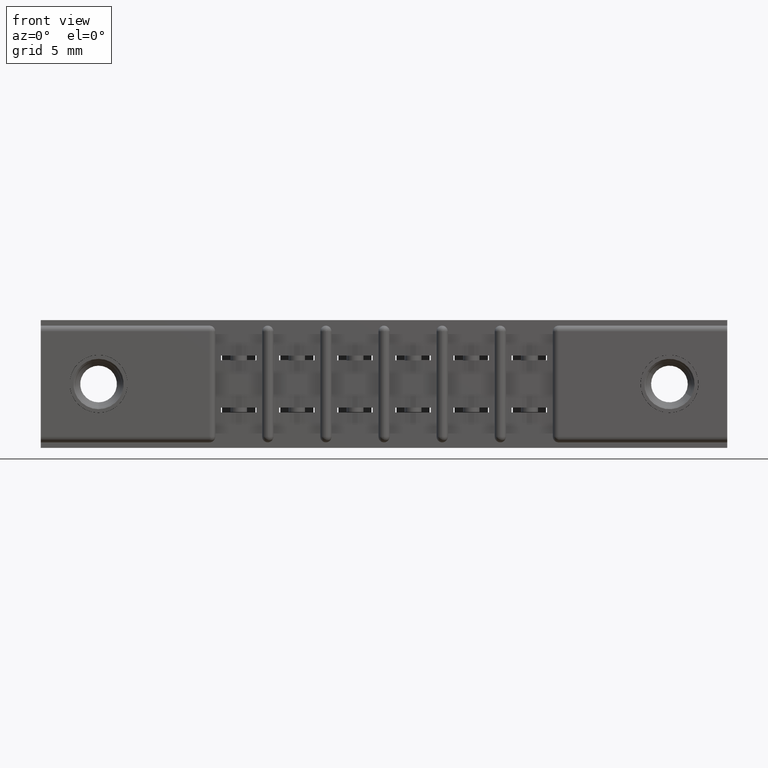
[diagram: clean part render]
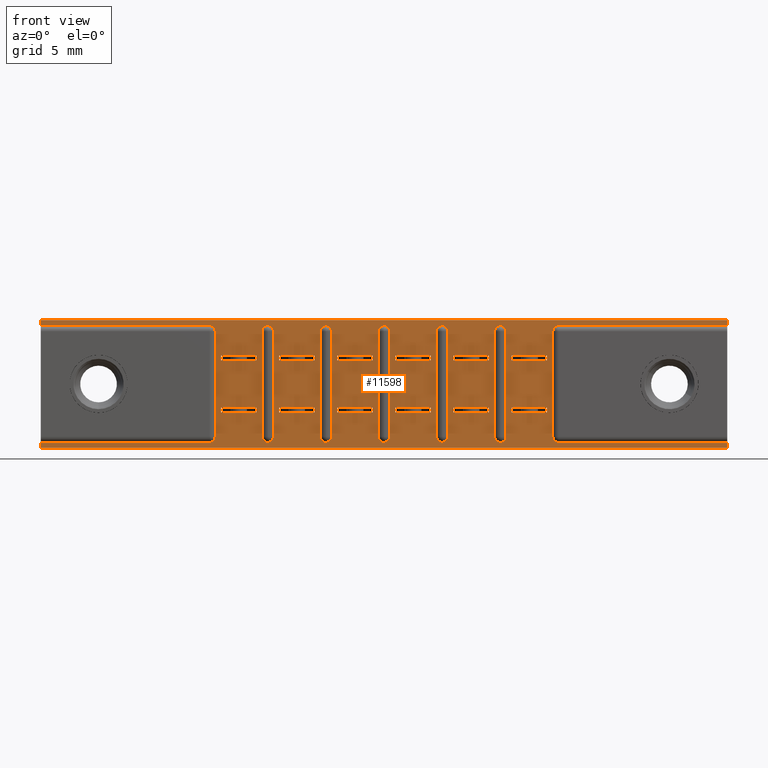
[diagram: same view with one face highlighted and labeled with its STEP entity id]
A machine part, front view. The second image highlights one B-rep face of the part: STEP entity #11598.
In plain terms, the highlighted planar face has unit normal (0, 1, 0).
Its self-contained STEP definition (entity closure, byte-faithful):
#2 = ORIENTED_EDGE ( 'NONE', *, *, #10173, .T. ) ;
#6 = FACE_BOUND ( 'NONE', #5863, .T. ) ;
#13 = CARTESIAN_POINT ( 'NONE',  ( 1.263500000000001000, 0.03100000000000000000, -0.2480000000000003300 ) ) ;
#16 = CIRCLE ( 'NONE', #5145, 0.01500000000000001200 ) ;
#27 = LINE ( 'NONE', #889, #7720 ) ;
#36 = DIRECTION ( 'NONE',  ( -1.000000000000000000, -0.0000000000000000000, -0.0000000000000000000 ) ) ;
#39 = CIRCLE ( 'NONE', #7093, 0.01499999999999999900 ) ;
#41 = EDGE_LOOP ( 'NONE', ( #9399, #6127, #8507, #9844 ) ) ;
#85 = EDGE_CURVE ( 'NONE', #7610, #1729, #534, .T. ) ;
#102 = DIRECTION ( 'NONE',  ( -1.000000000000000000, -0.0000000000000000000, -0.0000000000000000000 ) ) ;
#105 = EDGE_CURVE ( 'NONE', #10066, #6390, #2300, .T. ) ;
#118 = DIRECTION ( 'NONE',  ( -1.000000000000000000, 0.0000000000000000000, 3.594536833768733600E-016 ) ) ;
#149 = DIRECTION ( 'NONE',  ( -1.000000000000000000, -0.0000000000000000000, 3.594536833768733600E-016 ) ) ;
#158 = ORIENTED_EDGE ( 'NONE', *, *, #4733, .F. ) ;
#170 = VERTEX_POINT ( 'NONE', #8257 ) ;
#178 = ORIENTED_EDGE ( 'NONE', *, *, #6514, .T. ) ;
#208 = VECTOR ( 'NONE', #6618, 39.37007874015748100 ) ;
#241 = CARTESIAN_POINT ( 'NONE',  ( 1.077000000000000200, 0.03100000000000002400, -0.02999999999999995400 ) ) ;
#248 = LINE ( 'NONE', #11087, #3319 ) ;
#269 = DIRECTION ( 'NONE',  ( 0.0000000000000000000, 1.000000000000000000, 0.0000000000000000000 ) ) ;
#270 = CARTESIAN_POINT ( 'NONE',  ( 0.7955000000000017600, 0.03100000000000002400, -0.2350000000000003800 ) ) ;
#272 = CARTESIAN_POINT ( 'NONE',  ( 1.842000000000000700, 0.03100000000000000000, -0.01499999999999997700 ) ) ;
#274 = ORIENTED_EDGE ( 'NONE', *, *, #2934, .T. ) ;
#286 = DIRECTION ( 'NONE',  ( 0.0000000000000000000, -0.0000000000000000000, 1.000000000000000000 ) ) ;
#290 = EDGE_CURVE ( 'NONE', #3280, #10410, #1133, .T. ) ;
#294 = CARTESIAN_POINT ( 'NONE',  ( 0.4530000000000003500, 0.03100000000000000000, -0.01499999999999997700 ) ) ;
#304 = VERTEX_POINT ( 'NONE', #5520 ) ;
#329 = DIRECTION ( 'NONE',  ( 0.0000000000000000000, 0.0000000000000000000, 1.000000000000000000 ) ) ;
#332 = DIRECTION ( 'NONE',  ( 0.0000000000000000000, 0.0000000000000000000, 1.000000000000000000 ) ) ;
#334 = ORIENTED_EDGE ( 'NONE', *, *, #342, .T. ) ;
#342 = EDGE_CURVE ( 'NONE', #4414, #6740, #10919, .T. ) ;
#357 = LINE ( 'NONE', #1673, #7155 ) ;
#358 = CARTESIAN_POINT ( 'NONE',  ( 0.9210000000000003700, 0.03100000000000000000, -0.3130000000000000600 ) ) ;
#361 = ORIENTED_EDGE ( 'NONE', *, *, #9298, .T. ) ;
#367 = AXIS2_PLACEMENT_3D ( 'NONE', #6791, #11659, #5012 ) ;
#371 = ORIENTED_EDGE ( 'NONE', *, *, #7473, .T. ) ;
#385 = CIRCLE ( 'NONE', #5365, 0.01500000000000001200 ) ;
#396 = DIRECTION ( 'NONE',  ( 0.0000000000000000000, -0.0000000000000000000, 1.000000000000000000 ) ) ;
#410 = CARTESIAN_POINT ( 'NONE',  ( 0.9210000000000003700, 0.03100000000000002400, -0.02999999999999995400 ) ) ;
#423 = DIRECTION ( 'NONE',  ( 0.0000000000000000000, 1.000000000000000000, 0.0000000000000000000 ) ) ;
#436 = CARTESIAN_POINT ( 'NONE',  ( 1.202500000000001200, 0.03100000000000002400, -0.1080000000000003200 ) ) ;
#441 = LINE ( 'NONE', #9673, #9962 ) ;
#442 = ORIENTED_EDGE ( 'NONE', *, *, #11798, .F. ) ;
#451 = VERTEX_POINT ( 'NONE', #7357 ) ;
#453 = ORIENTED_EDGE ( 'NONE', *, *, #11243, .T. ) ;
#460 = EDGE_CURVE ( 'NONE', #7104, #4391, #385, .T. ) ;
#507 = EDGE_LOOP ( 'NONE', ( #9224, #2023, #11733, #6728 ) ) ;
#534 = LINE ( 'NONE', #4662, #1713 ) ;
#552 = ORIENTED_EDGE ( 'NONE', *, *, #7947, .T. ) ;
#558 = VERTEX_POINT ( 'NONE', #10939 ) ;
#570 = EDGE_CURVE ( 'NONE', #2806, #8592, #5007, .T. ) ;
#583 = FACE_BOUND ( 'NONE', #2887, .T. ) ;
#593 = VERTEX_POINT ( 'NONE', #8175 ) ;
#613 = EDGE_CURVE ( 'NONE', #9022, #9271, #2715, .T. ) ;
#626 = EDGE_LOOP ( 'NONE', ( #2985, #3431, #3416, #11537 ) ) ;
#636 = ORIENTED_EDGE ( 'NONE', *, *, #10705, .F. ) ;
#684 = VERTEX_POINT ( 'NONE', #4571 ) ;
#705 = CARTESIAN_POINT ( 'NONE',  ( 1.107500000000001000, 0.03100000000000000000, -0.2480000000000003300 ) ) ;
#737 = EDGE_CURVE ( 'NONE', #877, #4674, #6164, .T. ) ;
#759 = CARTESIAN_POINT ( 'NONE',  ( 1.062000000000000300, 0.03100000000000002400, -0.3130000000000000600 ) ) ;
#783 = CARTESIAN_POINT ( 'NONE',  ( 1.107500000000001300, 0.03100000000000002400, -0.1080000000000003000 ) ) ;
#790 = DIRECTION ( 'NONE',  ( 1.507642380609414700E-016, 0.0000000000000000000, -1.000000000000000000 ) ) ;
#802 = EDGE_CURVE ( 'NONE', #3644, #451, #7772, .T. ) ;
#804 = CARTESIAN_POINT ( 'NONE',  ( 0.6395000000000022900, 0.03100000000000000000, -0.2350000000000003800 ) ) ;
#810 = CIRCLE ( 'NONE', #2982, 0.01500000000000001200 ) ;
#816 = EDGE_CURVE ( 'NONE', #2354, #6278, #5429, .T. ) ;
#820 = VERTEX_POINT ( 'NONE', #11343 ) ;
#823 = CARTESIAN_POINT ( 'NONE',  ( 0.9515000000000004600, 0.03100000000000000000, -0.09500000000000032000 ) ) ;
#840 = LINE ( 'NONE', #1090, #976 ) ;
#848 = ORIENTED_EDGE ( 'NONE', *, *, #10780, .F. ) ;
#877 = VERTEX_POINT ( 'NONE', #7113 ) ;
#887 = ORIENTED_EDGE ( 'NONE', *, *, #10215, .T. ) ;
#889 = CARTESIAN_POINT ( 'NONE',  ( 1.842000000000000700, 0.03100000000000000000, -0.01499999999999997700 ) ) ;
#896 = FACE_BOUND ( 'NONE', #6703, .T. ) ;
#915 = ORIENTED_EDGE ( 'NONE', *, *, #11775, .F. ) ;
#923 = LINE ( 'NONE', #10449, #7580 ) ;
#945 = LINE ( 'NONE', #8791, #1547 ) ;
#973 = CARTESIAN_POINT ( 'NONE',  ( 1.358500000000001400, 0.03100000000000002400, -0.05850000000000034300 ) ) ;
#976 = VECTOR ( 'NONE', #4703, 39.37007874015748100 ) ;
#990 = ORIENTED_EDGE ( 'NONE', *, *, #6562, .T. ) ;
#1000 = CARTESIAN_POINT ( 'NONE',  ( 0.6395000000000004000, 0.03100000000000000000, -0.09500000000000032000 ) ) ;
#1032 = VERTEX_POINT ( 'NONE', #10490 ) ;
#1042 = ORIENTED_EDGE ( 'NONE', *, *, #2542, .F. ) ;
#1044 = CARTESIAN_POINT ( 'NONE',  ( 0.7800000000000004700, 0.03100000000000002400, -0.02999999999999995400 ) ) ;
#1051 = EDGE_CURVE ( 'NONE', #10410, #2504, #3287, .T. ) ;
#1067 = VECTOR ( 'NONE', #2872, 39.37007874015748100 ) ;
#1070 = VECTOR ( 'NONE', #10028, 39.37007874015748100 ) ;
#1090 = CARTESIAN_POINT ( 'NONE',  ( 0.4835000000000013200, 0.03100000000000002400, -0.05850000000000034300 ) ) ;
#1095 = AXIS2_PLACEMENT_3D ( 'NONE', #5216, #3424, #6033 ) ;
#1125 = CARTESIAN_POINT ( 'NONE',  ( 0.4680000000000003000, 0.03100000000000002400, -0.02999999999999995400 ) ) ;
#1133 = LINE ( 'NONE', #8813, #3442 ) ;
#1134 = VERTEX_POINT ( 'NONE', #2282 ) ;
#1147 = EDGE_CURVE ( 'NONE', #5859, #6278, #4285, .T. ) ;
#1191 = FACE_BOUND ( 'NONE', #507, .T. ) ;
#1219 = ORIENTED_EDGE ( 'NONE', *, *, #11481, .F. ) ;
#1231 = DIRECTION ( 'NONE',  ( 0.0000000000000000000, 0.0000000000000000000, 1.000000000000000000 ) ) ;
#1233 = LINE ( 'NONE', #10503, #1660 ) ;
#1294 = VECTOR ( 'NONE', #5048, 39.37007874015748100 ) ;
#1301 = CARTESIAN_POINT ( 'NONE',  ( 0.0000000000000000000, 0.03100000000000000000, -0.3430000000000000300 ) ) ;
#1306 = ORIENTED_EDGE ( 'NONE', *, *, #10978, .T. ) ;
#1333 = EDGE_CURVE ( 'NONE', #10532, #5859, #11898, .T. ) ;
#1334 = ORIENTED_EDGE ( 'NONE', *, *, #9814, .F. ) ;
#1348 = ORIENTED_EDGE ( 'NONE', *, *, #8732, .T. ) ;
#1375 = AXIS2_PLACEMENT_3D ( 'NONE', #410, #2259, #6878 ) ;
#1397 = VECTOR ( 'NONE', #9051, 39.37007874015748100 ) ;
#1443 = LINE ( 'NONE', #5325, #6916 ) ;
#1450 = DIRECTION ( 'NONE',  ( -1.000000000000000000, 0.0000000000000000000, 3.594536833768733600E-016 ) ) ;
#1493 = CARTESIAN_POINT ( 'NONE',  ( 1.202500000000001200, 0.03100000000000002400, -0.05850000000000034300 ) ) ;
#1495 = EDGE_CURVE ( 'NONE', #7711, #7610, #810, .T. ) ;
#1516 = DIRECTION ( 'NONE',  ( 0.0000000000000000000, 0.0000000000000000000, 1.000000000000000000 ) ) ;
#1547 = VECTOR ( 'NONE', #9767, 39.37007874015748100 ) ;
#1576 = EDGE_LOOP ( 'NONE', ( #11314, #1306, #371, #10577, #4734, #636, #8103, #10379, #915, #552, #10806, #178, #1874, #274, #7953, #3216 ) ) ;
#1585 = LINE ( 'NONE', #4130, #1294 ) ;
#1609 = LINE ( 'NONE', #2990, #9951 ) ;
#1612 = EDGE_CURVE ( 'NONE', #8661, #9271, #3123, .T. ) ;
#1619 = AXIS2_PLACEMENT_3D ( 'NONE', #9461, #3951, #4905 ) ;
#1642 = DIRECTION ( 'NONE',  ( -1.000000000000000000, -0.0000000000000000000, -0.0000000000000000000 ) ) ;
#1644 = EDGE_CURVE ( 'NONE', #9689, #4275, #357, .T. ) ;
#1645 = EDGE_CURVE ( 'NONE', #3517, #2297, #10322, .T. ) ;
#1651 = CARTESIAN_POINT ( 'NONE',  ( 1.202500000000001200, 0.03100000000000002400, -0.2350000000000003800 ) ) ;
#1660 = VECTOR ( 'NONE', #7118, 39.37007874015748100 ) ;
#1673 = CARTESIAN_POINT ( 'NONE',  ( 1.842000000000000700, 0.03100000000000000000, -0.3430000000000000300 ) ) ;
#1679 = ORIENTED_EDGE ( 'NONE', *, *, #9833, .T. ) ;
#1699 = VECTOR ( 'NONE', #7122, 39.37007874015748100 ) ;
#1708 = VECTOR ( 'NONE', #6471, 39.37007874015748100 ) ;
#1713 = VECTOR ( 'NONE', #5544, 39.37007874015748100 ) ;
#1719 = VERTEX_POINT ( 'NONE', #6940 ) ;
#1729 = VERTEX_POINT ( 'NONE', #7929 ) ;
#1749 = ORIENTED_EDGE ( 'NONE', *, *, #8386, .F. ) ;
#1770 = VECTOR ( 'NONE', #1642, 39.37007874015748100 ) ;
#1789 = LINE ( 'NONE', #4775, #2086 ) ;
#1873 = CARTESIAN_POINT ( 'NONE',  ( 0.7345000000000013700, 0.03100000000000002400, -0.1080000000000003200 ) ) ;
#1874 = ORIENTED_EDGE ( 'NONE', *, *, #10868, .T. ) ;
#1894 = VERTEX_POINT ( 'NONE', #10544 ) ;
#1900 = LINE ( 'NONE', #8464, #4180 ) ;
#1912 = FACE_BOUND ( 'NONE', #7386, .T. ) ;
#1953 = DIRECTION ( 'NONE',  ( 1.000000000000000000, -0.0000000000000000000, 0.0000000000000000000 ) ) ;
#1985 = CARTESIAN_POINT ( 'NONE',  ( 0.6090000000000002100, 0.03100000000000000000, -0.01499999999999997700 ) ) ;
#2008 = ORIENTED_EDGE ( 'NONE', *, *, #6094, .T. ) ;
#2023 = ORIENTED_EDGE ( 'NONE', *, *, #5992, .F. ) ;
#2024 = ORIENTED_EDGE ( 'NONE', *, *, #9631, .T. ) ;
#2030 = ORIENTED_EDGE ( 'NONE', *, *, #7204, .T. ) ;
#2038 = ORIENTED_EDGE ( 'NONE', *, *, #3524, .T. ) ;
#2041 = LINE ( 'NONE', #10165, #7969 ) ;
#2065 = CARTESIAN_POINT ( 'NONE',  ( 0.4680000000000003600, 0.03100000000000002400, -0.4680000000000006900 ) ) ;
#2086 = VECTOR ( 'NONE', #10507, 39.37007874015748100 ) ;
#2117 = DIRECTION ( 'NONE',  ( 0.0000000000000000000, 0.0000000000000000000, 1.000000000000000000 ) ) ;
#2161 = CARTESIAN_POINT ( 'NONE',  ( 0.8905000000000012900, 0.03100000000000000000, -0.09500000000000034800 ) ) ;
#2171 = CARTESIAN_POINT ( 'NONE',  ( 0.7955000000000011000, 0.03100000000000000000, -0.2480000000000003300 ) ) ;
#2190 = EDGE_CURVE ( 'NONE', #877, #1032, #840, .T. ) ;
#2200 = VERTEX_POINT ( 'NONE', #1044 ) ;
#2211 = DIRECTION ( 'NONE',  ( 0.0000000000000000000, -0.0000000000000000000, 1.000000000000000000 ) ) ;
#2220 = FACE_BOUND ( 'NONE', #3513, .T. ) ;
#2259 = DIRECTION ( 'NONE',  ( 0.0000000000000000000, 1.000000000000000000, 0.0000000000000000000 ) ) ;
#2266 = LINE ( 'NONE', #5061, #5108 ) ;
#2282 = CARTESIAN_POINT ( 'NONE',  ( 0.7500000000000003300, 0.03100000000000002400, -0.3130000000000000600 ) ) ;
#2286 = DIRECTION ( 'NONE',  ( 1.507642380609414700E-016, 0.0000000000000000000, -1.000000000000000000 ) ) ;
#2291 = CARTESIAN_POINT ( 'NONE',  ( 0.5785000000000013500, 0.03100000000000002400, -0.05850000000000034300 ) ) ;
#2293 = VECTOR ( 'NONE', #1450, 39.37007874015748100 ) ;
#2297 = VERTEX_POINT ( 'NONE', #4902 ) ;
#2300 = CIRCLE ( 'NONE', #9316, 0.01500000000000001200 ) ;
#2310 = DIRECTION ( 'NONE',  ( 1.000000000000000000, 0.0000000000000000000, -1.797268416884366800E-016 ) ) ;
#2311 = EDGE_LOOP ( 'NONE', ( #6983, #3643, #8006, #5094, #5740, #3346 ) ) ;
#2313 = LINE ( 'NONE', #9451, #5153 ) ;
#2334 = DIRECTION ( 'NONE',  ( 0.0000000000000000000, 1.000000000000000000, 0.0000000000000000000 ) ) ;
#2348 = DIRECTION ( 'NONE',  ( 0.0000000000000000000, 1.000000000000000000, 0.0000000000000000000 ) ) ;
#2354 = VERTEX_POINT ( 'NONE', #6189 ) ;
#2374 = LINE ( 'NONE', #10131, #4231 ) ;
#2469 = DIRECTION ( 'NONE',  ( 0.0000000000000000000, 0.0000000000000000000, 1.000000000000000000 ) ) ;
#2484 = CARTESIAN_POINT ( 'NONE',  ( 1.358500000000001400, 0.03100000000000002400, -0.2350000000000003800 ) ) ;
#2502 = FACE_BOUND ( 'NONE', #8061, .T. ) ;
#2504 = VERTEX_POINT ( 'NONE', #11382 ) ;
#2542 = EDGE_CURVE ( 'NONE', #451, #11011, #11506, .T. ) ;
#2554 = ORIENTED_EDGE ( 'NONE', *, *, #6200, .F. ) ;
#2583 = AXIS2_PLACEMENT_3D ( 'NONE', #11788, #2334, #5083 ) ;
#2604 = AXIS2_PLACEMENT_3D ( 'NONE', #2612, #5524, #3723 ) ;
#2610 = CARTESIAN_POINT ( 'NONE',  ( 0.7955000000000004300, 0.03100000000000000000, -0.09500000000000032000 ) ) ;
#2612 = CARTESIAN_POINT ( 'NONE',  ( 1.389000000000000200, 0.03100000000000000000, -0.02999999999999997800 ) ) ;
#2616 = CARTESIAN_POINT ( 'NONE',  ( 1.046500000000001300, 0.03100000000000002400, -0.2350000000000003800 ) ) ;
#2657 = CARTESIAN_POINT ( 'NONE',  ( 0.8905000000000012900, 0.03100000000000002400, -0.05850000000000034300 ) ) ;
#2673 = CARTESIAN_POINT ( 'NONE',  ( 0.9060000000000003600, 0.03100000000000002400, -0.3130000000000000600 ) ) ;
#2715 = LINE ( 'NONE', #4494, #9481 ) ;
#2724 = VERTEX_POINT ( 'NONE', #8015 ) ;
#2779 = FACE_BOUND ( 'NONE', #41, .T. ) ;
#2801 = CARTESIAN_POINT ( 'NONE',  ( 1.092000000000000300, 0.03100000000000002400, -0.4680000000000006900 ) ) ;
#2806 = VERTEX_POINT ( 'NONE', #9286 ) ;
#2809 = EDGE_LOOP ( 'NONE', ( #5356, #6818, #334, #5735, #2008, #2038 ) ) ;
#2814 = VECTOR ( 'NONE', #8982, 39.37007874015748100 ) ;
#2833 = LINE ( 'NONE', #8152, #11613 ) ;
#2852 = VECTOR ( 'NONE', #11049, 39.37007874015748100 ) ;
#2854 = EDGE_CURVE ( 'NONE', #4773, #11535, #8324, .T. ) ;
#2859 = CARTESIAN_POINT ( 'NONE',  ( 0.7650000000000003500, 0.03100000000000000000, -0.01499999999999997700 ) ) ;
#2872 = DIRECTION ( 'NONE',  ( 0.0000000000000000000, -0.0000000000000000000, 1.000000000000000000 ) ) ;
#2883 = DIRECTION ( 'NONE',  ( 0.0000000000000000000, -0.0000000000000000000, 1.000000000000000000 ) ) ;
#2887 = EDGE_LOOP ( 'NONE', ( #6609, #6311, #3042, #1219 ) ) ;
#2928 = CARTESIAN_POINT ( 'NONE',  ( 0.6090000000000002100, 0.03100000000000000000, -0.02999999999999997800 ) ) ;
#2934 = EDGE_CURVE ( 'NONE', #6057, #6539, #9049, .T. ) ;
#2946 = PLANE ( 'NONE',  #4525 ) ;
#2948 = DIRECTION ( 'NONE',  ( -1.000000000000000000, 0.0000000000000000000, 3.594536833768733600E-016 ) ) ;
#2963 = CARTESIAN_POINT ( 'NONE',  ( 1.046500000000001300, 0.03100000000000002400, -0.05850000000000034300 ) ) ;
#2966 = CARTESIAN_POINT ( 'NONE',  ( 1.046500000000001300, 0.03100000000000000000, -0.09500000000000034800 ) ) ;
#2977 = DIRECTION ( 'NONE',  ( 0.0000000000000000000, 1.000000000000000000, 0.0000000000000000000 ) ) ;
#2982 = AXIS2_PLACEMENT_3D ( 'NONE', #7409, #11085, #7366 ) ;
#2985 = ORIENTED_EDGE ( 'NONE', *, *, #1051, .F. ) ;
#2990 = CARTESIAN_POINT ( 'NONE',  ( 1.107500000000001300, 0.03100000000000002400, -0.05850000000000034300 ) ) ;
#2997 = EDGE_CURVE ( 'NONE', #10760, #11947, #10337, .T. ) ;
#3001 = CIRCLE ( 'NONE', #7670, 0.01500000000000001200 ) ;
#3007 = VECTOR ( 'NONE', #9771, 39.37007874015748100 ) ;
#3027 = CIRCLE ( 'NONE', #4666, 0.01500000000000001200 ) ;
#3029 = ORIENTED_EDGE ( 'NONE', *, *, #816, .T. ) ;
#3035 = EDGE_CURVE ( 'NONE', #4275, #6539, #10775, .T. ) ;
#3042 = ORIENTED_EDGE ( 'NONE', *, *, #3298, .F. ) ;
#3069 = DIRECTION ( 'NONE',  ( 0.0000000000000000000, 1.000000000000000000, 0.0000000000000000000 ) ) ;
#3077 = CARTESIAN_POINT ( 'NONE',  ( 0.7500000000000003300, 0.03100000000000002400, -0.02999999999999995400 ) ) ;
#3092 = DIRECTION ( 'NONE',  ( 0.0000000000000000000, 0.0000000000000000000, 1.000000000000000000 ) ) ;
#3122 = ORIENTED_EDGE ( 'NONE', *, *, #9796, .F. ) ;
#3123 = LINE ( 'NONE', #9800, #4984 ) ;
#3134 = CARTESIAN_POINT ( 'NONE',  ( 1.263500000000001400, 0.03100000000000002400, -0.05850000000000034300 ) ) ;
#3138 = VECTOR ( 'NONE', #6793, 39.37007874015748100 ) ;
#3184 = CARTESIAN_POINT ( 'NONE',  ( 0.9515000000000013400, 0.03100000000000002400, -0.05850000000000034300 ) ) ;
#3208 = DIRECTION ( 'NONE',  ( -1.000000000000000000, 0.0000000000000000000, 3.594536833768733600E-016 ) ) ;
#3216 = ORIENTED_EDGE ( 'NONE', *, *, #1644, .F. ) ;
#3247 = CARTESIAN_POINT ( 'NONE',  ( 0.6240000000000003300, 0.03100000000000002400, -0.4680000000000006900 ) ) ;
#3255 = ORIENTED_EDGE ( 'NONE', *, *, #10524, .F. ) ;
#3280 = VERTEX_POINT ( 'NONE', #7527 ) ;
#3287 = LINE ( 'NONE', #9323, #11041 ) ;
#3298 = EDGE_CURVE ( 'NONE', #3396, #11289, #9182, .T. ) ;
#3312 = VERTEX_POINT ( 'NONE', #9372 ) ;
#3319 = VECTOR ( 'NONE', #118, 39.37007874015748100 ) ;
#3322 = VERTEX_POINT ( 'NONE', #272 ) ;
#3341 = EDGE_CURVE ( 'NONE', #3280, #170, #7311, .T. ) ;
#3346 = ORIENTED_EDGE ( 'NONE', *, *, #9070, .T. ) ;
#3352 = ORIENTED_EDGE ( 'NONE', *, *, #7806, .F. ) ;
#3396 = VERTEX_POINT ( 'NONE', #4093 ) ;
#3400 = CARTESIAN_POINT ( 'NONE',  ( 1.107500000000000400, 0.03100000000000000000, -0.09500000000000032000 ) ) ;
#3401 = CARTESIAN_POINT ( 'NONE',  ( 1.358500000000001400, 0.03100000000000000000, -0.09500000000000034800 ) ) ;
#3416 = ORIENTED_EDGE ( 'NONE', *, *, #3341, .T. ) ;
#3424 = DIRECTION ( 'NONE',  ( 0.0000000000000000000, 1.000000000000000000, 0.0000000000000000000 ) ) ;
#3431 = ORIENTED_EDGE ( 'NONE', *, *, #290, .F. ) ;
#3442 = VECTOR ( 'NONE', #3752, 39.37007874015748100 ) ;
#3472 = VERTEX_POINT ( 'NONE', #11454 ) ;
#3490 = CIRCLE ( 'NONE', #1619, 0.01500000000000001200 ) ;
#3497 = DIRECTION ( 'NONE',  ( 0.0000000000000000000, -0.0000000000000000000, 1.000000000000000000 ) ) ;
#3513 = EDGE_LOOP ( 'NONE', ( #9505, #3564, #158, #4916 ) ) ;
#3517 = VERTEX_POINT ( 'NONE', #2161 ) ;
#3524 = EDGE_CURVE ( 'NONE', #10685, #10191, #5411, .T. ) ;
#3534 = CARTESIAN_POINT ( 'NONE',  ( 0.9060000000000003600, 0.03100000000000002400, -0.4680000000000006900 ) ) ;
#3564 = ORIENTED_EDGE ( 'NONE', *, *, #7396, .F. ) ;
#3606 = DIRECTION ( 'NONE',  ( 0.0000000000000000000, -0.0000000000000000000, 1.000000000000000000 ) ) ;
#3641 = FACE_BOUND ( 'NONE', #10440, .T. ) ;
#3643 = ORIENTED_EDGE ( 'NONE', *, *, #7412, .T. ) ;
#3644 = VERTEX_POINT ( 'NONE', #436 ) ;
#3688 = LINE ( 'NONE', #11789, #7445 ) ;
#3693 = CARTESIAN_POINT ( 'NONE',  ( 0.6090000000000005400, 0.03100000000000000000, -0.3130000000000000600 ) ) ;
#3712 = LINE ( 'NONE', #9478, #8325 ) ;
#3714 = CARTESIAN_POINT ( 'NONE',  ( 0.8905000000000012900, 0.03100000000000002400, -0.2350000000000003800 ) ) ;
#3723 = DIRECTION ( 'NONE',  ( 0.0000000000000000000, 0.0000000000000000000, 1.000000000000000000 ) ) ;
#3730 = CARTESIAN_POINT ( 'NONE',  ( 0.5785000000000013500, 0.03100000000000000000, -0.09500000000000034800 ) ) ;
#3752 = DIRECTION ( 'NONE',  ( 1.000000000000000000, 0.0000000000000000000, 0.0000000000000000000 ) ) ;
#3770 = CARTESIAN_POINT ( 'NONE',  ( 0.9360000000000003900, 0.03100000000000002400, -0.02999999999999995400 ) ) ;
#3782 = CARTESIAN_POINT ( 'NONE',  ( 0.7345000000000013700, 0.03100000000000002400, -0.05850000000000034300 ) ) ;
#3801 = CARTESIAN_POINT ( 'NONE',  ( 1.202500000000001200, 0.03100000000000000000, -0.2480000000000003300 ) ) ;
#3814 = CARTESIAN_POINT ( 'NONE',  ( 0.4835000000000013200, 0.03100000000000002400, -0.05850000000000034300 ) ) ;
#3820 = DIRECTION ( 'NONE',  ( 0.0000000000000000000, 0.0000000000000000000, 1.000000000000000000 ) ) ;
#3836 = CARTESIAN_POINT ( 'NONE',  ( 0.7955000000000011000, 0.03100000000000000000, -0.2480000000000003300 ) ) ;
#3868 = CARTESIAN_POINT ( 'NONE',  ( 1.842000000000000700, 0.03100000000000000000, -0.3430000000000000300 ) ) ;
#3892 = VERTEX_POINT ( 'NONE', #4463 ) ;
#3929 = LINE ( 'NONE', #7869, #1770 ) ;
#3951 = DIRECTION ( 'NONE',  ( 0.0000000000000000000, 1.000000000000000000, 0.0000000000000000000 ) ) ;
#3979 = DIRECTION ( 'NONE',  ( 0.0000000000000000000, 1.000000000000000000, 0.0000000000000000000 ) ) ;
#4001 = CARTESIAN_POINT ( 'NONE',  ( 0.9515000000000010100, 0.03100000000000000000, -0.2480000000000003300 ) ) ;
#4017 = CARTESIAN_POINT ( 'NONE',  ( 1.842000000000000700, 0.03100000000000000000, -0.3280000000000000100 ) ) ;
#4026 = CARTESIAN_POINT ( 'NONE',  ( 0.7345000000000013700, 0.03100000000000002400, -0.2350000000000003800 ) ) ;
#4029 = CARTESIAN_POINT ( 'NONE',  ( 1.842000000000000700, 0.03100000000000000000, -0.3430000000000000300 ) ) ;
#4093 = CARTESIAN_POINT ( 'NONE',  ( 1.358500000000001400, 0.03100000000000002400, -0.1080000000000003200 ) ) ;
#4096 = AXIS2_PLACEMENT_3D ( 'NONE', #2928, #11283, #5722 ) ;
#4105 = CARTESIAN_POINT ( 'NONE',  ( 1.233000000000000300, 0.03100000000000002400, -0.02999999999999995400 ) ) ;
#4127 = EDGE_CURVE ( 'NONE', #820, #10392, #6708, .T. ) ;
#4130 = CARTESIAN_POINT ( 'NONE',  ( 1.374000000000000100, 0.03100000000000002400, -0.4680000000000006900 ) ) ;
#4140 = DIRECTION ( 'NONE',  ( 0.0000000000000000000, -0.0000000000000000000, 1.000000000000000000 ) ) ;
#4180 = VECTOR ( 'NONE', #6559, 39.37007874015748100 ) ;
#4192 = EDGE_CURVE ( 'NONE', #4785, #4414, #39, .T. ) ;
#4231 = VECTOR ( 'NONE', #36, 39.37007874015748100 ) ;
#4242 = VECTOR ( 'NONE', #6787, 39.37007874015748100 ) ;
#4268 = EDGE_CURVE ( 'NONE', #5114, #304, #8287, .T. ) ;
#4275 = VERTEX_POINT ( 'NONE', #4029 ) ;
#4285 = LINE ( 'NONE', #804, #8901 ) ;
#4286 = DIRECTION ( 'NONE',  ( 0.0000000000000000000, 0.0000000000000000000, 1.000000000000000000 ) ) ;
#4323 = EDGE_LOOP ( 'NONE', ( #990, #1042, #6398, #9711 ) ) ;
#4350 = VERTEX_POINT ( 'NONE', #7668 ) ;
#4352 = FACE_BOUND ( 'NONE', #7570, .T. ) ;
#4370 = DIRECTION ( 'NONE',  ( 0.0000000000000000000, -0.0000000000000000000, 1.000000000000000000 ) ) ;
#4381 = ORIENTED_EDGE ( 'NONE', *, *, #6253, .T. ) ;
#4391 = VERTEX_POINT ( 'NONE', #5910 ) ;
#4414 = VERTEX_POINT ( 'NONE', #9588 ) ;
#4416 = ORIENTED_EDGE ( 'NONE', *, *, #5768, .T. ) ;
#4463 = CARTESIAN_POINT ( 'NONE',  ( 0.7955000000000014300, 0.03100000000000002400, -0.1080000000000003000 ) ) ;
#4482 = DIRECTION ( 'NONE',  ( -0.0000000000000000000, -0.0000000000000000000, -1.000000000000000000 ) ) ;
#4494 = CARTESIAN_POINT ( 'NONE',  ( 0.7955000000000014300, 0.03100000000000002400, -0.05850000000000034300 ) ) ;
#4512 = ORIENTED_EDGE ( 'NONE', *, *, #11171, .T. ) ;
#4525 = AXIS2_PLACEMENT_3D ( 'NONE', #3868, #3979, #286 ) ;
#4552 = ORIENTED_EDGE ( 'NONE', *, *, #8888, .F. ) ;
#4571 = CARTESIAN_POINT ( 'NONE',  ( 1.358500000000001400, 0.03100000000000000000, -0.2480000000000003300 ) ) ;
#4589 = DIRECTION ( 'NONE',  ( 1.000000000000000000, -0.0000000000000000000, 0.0000000000000000000 ) ) ;
#4593 = ORIENTED_EDGE ( 'NONE', *, *, #7974, .F. ) ;
#4630 = DIRECTION ( 'NONE',  ( 1.000000000000000000, 0.0000000000000000000, -1.797268416884366800E-016 ) ) ;
#4651 = ORIENTED_EDGE ( 'NONE', *, *, #8170, .T. ) ;
#4659 = LINE ( 'NONE', #6388, #1070 ) ;
#4662 = CARTESIAN_POINT ( 'NONE',  ( 0.5940000000000003100, 0.03100000000000002400, -0.4680000000000006900 ) ) ;
#4666 = AXIS2_PLACEMENT_3D ( 'NONE', #3693, #8282, #10299 ) ;
#4674 = VERTEX_POINT ( 'NONE', #10380 ) ;
#4692 = CARTESIAN_POINT ( 'NONE',  ( 1.218000000000000200, 0.03100000000000002400, -0.4680000000000006900 ) ) ;
#4703 = DIRECTION ( 'NONE',  ( 0.0000000000000000000, 0.0000000000000000000, 1.000000000000000000 ) ) ;
#4733 = EDGE_CURVE ( 'NONE', #4674, #6959, #8274, .T. ) ;
#4734 = ORIENTED_EDGE ( 'NONE', *, *, #10405, .F. ) ;
#4737 = CARTESIAN_POINT ( 'NONE',  ( 0.7650000000000003500, 0.03100000000000000000, -0.3130000000000000600 ) ) ;
#4763 = VERTEX_POINT ( 'NONE', #10501 ) ;
#4768 = CARTESIAN_POINT ( 'NONE',  ( 1.358500000000001400, 0.03100000000000002400, -0.05850000000000034300 ) ) ;
#4773 = VERTEX_POINT ( 'NONE', #8659 ) ;
#4775 = CARTESIAN_POINT ( 'NONE',  ( 1.107500000000002100, 0.03100000000000000000, -0.2350000000000003800 ) ) ;
#4785 = VERTEX_POINT ( 'NONE', #5896 ) ;
#4835 = EDGE_CURVE ( 'NONE', #5738, #5711, #8727, .T. ) ;
#4878 = VERTEX_POINT ( 'NONE', #2484 ) ;
#4892 = EDGE_CURVE ( 'NONE', #11807, #10066, #11285, .T. ) ;
#4902 = CARTESIAN_POINT ( 'NONE',  ( 0.7955000000000004300, 0.03100000000000000000, -0.09500000000000032000 ) ) ;
#4905 = DIRECTION ( 'NONE',  ( 0.0000000000000000000, 0.0000000000000000000, 1.000000000000000000 ) ) ;
#4906 = VERTEX_POINT ( 'NONE', #10881 ) ;
#4916 = ORIENTED_EDGE ( 'NONE', *, *, #737, .F. ) ;
#4927 = EDGE_CURVE ( 'NONE', #3892, #2297, #8259, .T. ) ;
#4932 = CIRCLE ( 'NONE', #10000, 0.01499999999999999900 ) ;
#4935 = DIRECTION ( 'NONE',  ( -1.000000000000000000, -0.0000000000000000000, -0.0000000000000000000 ) ) ;
#4942 = VECTOR ( 'NONE', #4630, 39.37007874015748100 ) ;
#4944 = VERTEX_POINT ( 'NONE', #7309 ) ;
#4950 = DIRECTION ( 'NONE',  ( 0.0000000000000000000, 1.000000000000000000, 0.0000000000000000000 ) ) ;
#4976 = EDGE_CURVE ( 'NONE', #5395, #3644, #7411, .T. ) ;
#4981 = EDGE_CURVE ( 'NONE', #684, #4878, #9419, .T. ) ;
#4984 = VECTOR ( 'NONE', #11741, 39.37007874015748100 ) ;
#4992 = CARTESIAN_POINT ( 'NONE',  ( 0.4530000000000003500, 0.03100000000000000000, -0.3130000000000000600 ) ) ;
#4997 = CARTESIAN_POINT ( 'NONE',  ( 1.389000000000000200, 0.03100000000000000000, -0.01499999999999997700 ) ) ;
#5007 = LINE ( 'NONE', #705, #8925 ) ;
#5012 = DIRECTION ( 'NONE',  ( 0.0000000000000000000, 0.0000000000000000000, 1.000000000000000000 ) ) ;
#5048 = DIRECTION ( 'NONE',  ( 0.0000000000000000000, 0.0000000000000000000, 1.000000000000000000 ) ) ;
#5061 = CARTESIAN_POINT ( 'NONE',  ( 0.9515000000000021200, 0.03100000000000000000, -0.2350000000000003800 ) ) ;
#5076 = CIRCLE ( 'NONE', #9700, 0.01500000000000001200 ) ;
#5083 = DIRECTION ( 'NONE',  ( 0.0000000000000000000, 0.0000000000000000000, 1.000000000000000000 ) ) ;
#5094 = ORIENTED_EDGE ( 'NONE', *, *, #460, .T. ) ;
#5108 = VECTOR ( 'NONE', #9740, 39.37007874015748100 ) ;
#5114 = VERTEX_POINT ( 'NONE', #4001 ) ;
#5145 = AXIS2_PLACEMENT_3D ( 'NONE', #5148, #5268, #1516 ) ;
#5148 = CARTESIAN_POINT ( 'NONE',  ( 1.389000000000000200, 0.03100000000000000000, -0.3130000000000000600 ) ) ;
#5153 = VECTOR ( 'NONE', #10467, 39.37007874015748100 ) ;
#5213 = FACE_BOUND ( 'NONE', #4323, .T. ) ;
#5216 = CARTESIAN_POINT ( 'NONE',  ( 0.6090000000000003200, 0.03100000000000002400, -0.02999999999999995400 ) ) ;
#5250 = VERTEX_POINT ( 'NONE', #1125 ) ;
#5268 = DIRECTION ( 'NONE',  ( 0.0000000000000000000, 1.000000000000000000, 0.0000000000000000000 ) ) ;
#5275 = CARTESIAN_POINT ( 'NONE',  ( 1.248000000000000200, 0.03100000000000002400, -0.4680000000000006900 ) ) ;
#5314 = VERTEX_POINT ( 'NONE', #8410 ) ;
#5325 = CARTESIAN_POINT ( 'NONE',  ( 0.9360000000000003900, 0.03100000000000002400, -0.4680000000000006900 ) ) ;
#5356 = ORIENTED_EDGE ( 'NONE', *, *, #7319, .T. ) ;
#5365 = AXIS2_PLACEMENT_3D ( 'NONE', #7684, #8558, #10451 ) ;
#5385 = EDGE_CURVE ( 'NONE', #6226, #8661, #6824, .T. ) ;
#5395 = VERTEX_POINT ( 'NONE', #783 ) ;
#5405 = VERTEX_POINT ( 'NONE', #2616 ) ;
#5406 = ORIENTED_EDGE ( 'NONE', *, *, #8384, .T. ) ;
#5411 = LINE ( 'NONE', #7764, #9169 ) ;
#5429 = LINE ( 'NONE', #9531, #3138 ) ;
#5489 = LINE ( 'NONE', #5913, #11397 ) ;
#5497 = LINE ( 'NONE', #3836, #10831 ) ;
#5507 = FACE_OUTER_BOUND ( 'NONE', #1576, .T. ) ;
#5520 = CARTESIAN_POINT ( 'NONE',  ( 0.9515000000000016800, 0.03100000000000002400, -0.2350000000000003800 ) ) ;
#5524 = DIRECTION ( 'NONE',  ( 0.0000000000000000000, 1.000000000000000000, 0.0000000000000000000 ) ) ;
#5535 = VECTOR ( 'NONE', #2211, 39.37007874015748100 ) ;
#5544 = DIRECTION ( 'NONE',  ( 0.0000000000000000000, -0.0000000000000000000, 1.000000000000000000 ) ) ;
#5666 = CARTESIAN_POINT ( 'NONE',  ( 1.233000000000000300, 0.03100000000000000000, -0.3130000000000000600 ) ) ;
#5668 = VECTOR ( 'NONE', #9537, 39.37007874015748100 ) ;
#5711 = VERTEX_POINT ( 'NONE', #9412 ) ;
#5722 = DIRECTION ( 'NONE',  ( 0.0000000000000000000, 0.0000000000000000000, 1.000000000000000000 ) ) ;
#5735 = ORIENTED_EDGE ( 'NONE', *, *, #10852, .T. ) ;
#5738 = VERTEX_POINT ( 'NONE', #5741 ) ;
#5739 = LINE ( 'NONE', #6129, #10071 ) ;
#5740 = ORIENTED_EDGE ( 'NONE', *, *, #6723, .T. ) ;
#5741 = CARTESIAN_POINT ( 'NONE',  ( 0.9060000000000003600, 0.03100000000000002400, -0.02999999999999995400 ) ) ;
#5747 = VECTOR ( 'NONE', #149, 39.37007874015748100 ) ;
#5768 = EDGE_CURVE ( 'NONE', #3472, #11807, #4932, .T. ) ;
#5775 = CARTESIAN_POINT ( 'NONE',  ( 0.4835000000000004300, 0.03100000000000000000, -0.09500000000000032000 ) ) ;
#5787 = VECTOR ( 'NONE', #6369, 39.37007874015748100 ) ;
#5859 = VERTEX_POINT ( 'NONE', #4026 ) ;
#5863 = EDGE_LOOP ( 'NONE', ( #10447, #2554, #3029, #6893 ) ) ;
#5893 = FACE_BOUND ( 'NONE', #2809, .T. ) ;
#5896 = CARTESIAN_POINT ( 'NONE',  ( 1.077000000000000200, 0.03100000000000000000, -0.01499999999999997700 ) ) ;
#5910 = CARTESIAN_POINT ( 'NONE',  ( 0.9210000000000003700, 0.03100000000000000000, -0.3280000000000000100 ) ) ;
#5913 = CARTESIAN_POINT ( 'NONE',  ( 1.107500000000001300, 0.03100000000000002400, -0.05850000000000034300 ) ) ;
#5950 = DIRECTION ( 'NONE',  ( 0.0000000000000000000, 1.000000000000000000, 0.0000000000000000000 ) ) ;
#5964 = EDGE_CURVE ( 'NONE', #4763, #7878, #7090, .T. ) ;
#5992 = EDGE_CURVE ( 'NONE', #9022, #6226, #5497, .T. ) ;
#6019 = VERTEX_POINT ( 'NONE', #13 ) ;
#6033 = DIRECTION ( 'NONE',  ( 0.0000000000000000000, 0.0000000000000000000, 1.000000000000000000 ) ) ;
#6057 = VERTEX_POINT ( 'NONE', #8344 ) ;
#6094 = EDGE_CURVE ( 'NONE', #10747, #10685, #3490, .T. ) ;
#6116 = CARTESIAN_POINT ( 'NONE',  ( 0.7650000000000004600, 0.03100000000000002400, -0.02999999999999995400 ) ) ;
#6127 = ORIENTED_EDGE ( 'NONE', *, *, #1645, .F. ) ;
#6129 = CARTESIAN_POINT ( 'NONE',  ( 0.9515000000000004600, 0.03100000000000000000, -0.1080000000000003000 ) ) ;
#6147 = EDGE_CURVE ( 'NONE', #5250, #593, #6804, .T. ) ;
#6152 = VECTOR ( 'NONE', #8486, 39.37007874015748100 ) ;
#6164 = LINE ( 'NONE', #9376, #2852 ) ;
#6180 = CARTESIAN_POINT ( 'NONE',  ( 1.062000000000000300, 0.03100000000000002400, -0.02999999999999995400 ) ) ;
#6189 = CARTESIAN_POINT ( 'NONE',  ( 0.6395000000000011800, 0.03100000000000000000, -0.2480000000000003300 ) ) ;
#6200 = EDGE_CURVE ( 'NONE', #2354, #10532, #441, .T. ) ;
#6226 = VERTEX_POINT ( 'NONE', #9707 ) ;
#6228 = FACE_BOUND ( 'NONE', #626, .T. ) ;
#6253 = EDGE_CURVE ( 'NONE', #2806, #7014, #5489, .T. ) ;
#6278 = VERTEX_POINT ( 'NONE', #7958 ) ;
#6284 = DIRECTION ( 'NONE',  ( -1.000000000000000000, 0.0000000000000000000, -0.0000000000000000000 ) ) ;
#6311 = ORIENTED_EDGE ( 'NONE', *, *, #7305, .F. ) ;
#6330 = CARTESIAN_POINT ( 'NONE',  ( 0.6090000000000002100, 0.03100000000000000000, -0.3280000000000000100 ) ) ;
#6349 = VERTEX_POINT ( 'NONE', #1651 ) ;
#6354 = CARTESIAN_POINT ( 'NONE',  ( 0.0000000000000000000, 0.03100000000000000000, 0.0000000000000000000 ) ) ;
#6356 = VERTEX_POINT ( 'NONE', #7048 ) ;
#6369 = DIRECTION ( 'NONE',  ( 1.000000000000000000, -0.0000000000000000000, 0.0000000000000000000 ) ) ;
#6388 = CARTESIAN_POINT ( 'NONE',  ( 1.842000000000000700, 0.03100000000000000000, 0.0000000000000000000 ) ) ;
#6390 = VERTEX_POINT ( 'NONE', #11186 ) ;
#6398 = ORIENTED_EDGE ( 'NONE', *, *, #802, .F. ) ;
#6452 = DIRECTION ( 'NONE',  ( 0.0000000000000000000, 0.0000000000000000000, 1.000000000000000000 ) ) ;
#6471 = DIRECTION ( 'NONE',  ( 1.000000000000000000, 0.0000000000000000000, -1.797268416884366800E-016 ) ) ;
#6511 = EDGE_LOOP ( 'NONE', ( #4552, #6823, #4381, #8764 ) ) ;
#6514 = EDGE_CURVE ( 'NONE', #593, #9409, #7075, .T. ) ;
#6536 = CARTESIAN_POINT ( 'NONE',  ( 1.233000000000000300, 0.03100000000000000000, -0.02999999999999997800 ) ) ;
#6539 = VERTEX_POINT ( 'NONE', #1301 ) ;
#6559 = DIRECTION ( 'NONE',  ( -1.000000000000000000, -0.0000000000000000000, -0.0000000000000000000 ) ) ;
#6562 = EDGE_CURVE ( 'NONE', #5395, #11011, #1609, .T. ) ;
#6609 = ORIENTED_EDGE ( 'NONE', *, *, #2854, .T. ) ;
#6618 = DIRECTION ( 'NONE',  ( 0.0000000000000000000, 0.0000000000000000000, 1.000000000000000000 ) ) ;
#6626 = CARTESIAN_POINT ( 'NONE',  ( 1.046500000000001300, 0.03100000000000002400, -0.1080000000000003200 ) ) ;
#6669 = DIRECTION ( 'NONE',  ( 0.0000000000000000000, 0.0000000000000000000, 1.000000000000000000 ) ) ;
#6684 = CIRCLE ( 'NONE', #11404, 0.01499999999999999900 ) ;
#6698 = CARTESIAN_POINT ( 'NONE',  ( 0.9360000000000003900, 0.03100000000000002400, -0.3130000000000000600 ) ) ;
#6703 = EDGE_LOOP ( 'NONE', ( #8142, #4416, #9151, #11955, #1348, #2024 ) ) ;
#6708 = LINE ( 'NONE', #1000, #10882 ) ;
#6723 = EDGE_CURVE ( 'NONE', #4391, #9352, #10387, .T. ) ;
#6728 = ORIENTED_EDGE ( 'NONE', *, *, #1612, .F. ) ;
#6740 = VERTEX_POINT ( 'NONE', #10676 ) ;
#6743 = CARTESIAN_POINT ( 'NONE',  ( 1.263500000000001400, 0.03100000000000002400, -0.05850000000000034300 ) ) ;
#6787 = DIRECTION ( 'NONE',  ( 0.0000000000000000000, 0.0000000000000000000, 1.000000000000000000 ) ) ;
#6791 = CARTESIAN_POINT ( 'NONE',  ( 0.7650000000000004600, 0.03100000000000000000, -0.3130000000000000600 ) ) ;
#6793 = DIRECTION ( 'NONE',  ( 0.0000000000000000000, -0.0000000000000000000, 1.000000000000000000 ) ) ;
#6796 = VERTEX_POINT ( 'NONE', #2859 ) ;
#6804 = LINE ( 'NONE', #2065, #8104 ) ;
#6818 = ORIENTED_EDGE ( 'NONE', *, *, #4192, .T. ) ;
#6823 = ORIENTED_EDGE ( 'NONE', *, *, #570, .F. ) ;
#6824 = LINE ( 'NONE', #2657, #11438 ) ;
#6841 = VERTEX_POINT ( 'NONE', #294 ) ;
#6859 = VERTEX_POINT ( 'NONE', #823 ) ;
#6878 = DIRECTION ( 'NONE',  ( 0.0000000000000000000, 0.0000000000000000000, 1.000000000000000000 ) ) ;
#6886 = CARTESIAN_POINT ( 'NONE',  ( 0.8905000000000012900, 0.03100000000000002400, -0.05850000000000034300 ) ) ;
#6893 = ORIENTED_EDGE ( 'NONE', *, *, #1147, .F. ) ;
#6916 = VECTOR ( 'NONE', #10371, 39.37007874015748100 ) ;
#6940 = CARTESIAN_POINT ( 'NONE',  ( 0.7800000000000004700, 0.03100000000000002400, -0.3130000000000000600 ) ) ;
#6945 = VERTEX_POINT ( 'NONE', #3770 ) ;
#6956 = CARTESIAN_POINT ( 'NONE',  ( 1.107500000000000400, 0.03100000000000000000, -0.09500000000000032000 ) ) ;
#6959 = VERTEX_POINT ( 'NONE', #3730 ) ;
#6979 = CARTESIAN_POINT ( 'NONE',  ( 1.107500000000001700, 0.03100000000000002400, -0.2350000000000003800 ) ) ;
#6983 = ORIENTED_EDGE ( 'NONE', *, *, #4835, .T. ) ;
#7008 = CARTESIAN_POINT ( 'NONE',  ( 1.263500000000002100, 0.03100000000000000000, -0.2350000000000003800 ) ) ;
#7014 = VERTEX_POINT ( 'NONE', #6979 ) ;
#7048 = CARTESIAN_POINT ( 'NONE',  ( 0.6240000000000003300, 0.03100000000000002400, -0.02999999999999995400 ) ) ;
#7054 = VERTEX_POINT ( 'NONE', #3077 ) ;
#7055 = LINE ( 'NONE', #5775, #5747 ) ;
#7061 = CARTESIAN_POINT ( 'NONE',  ( 0.7650000000000003500, 0.03100000000000000000, -0.02999999999999997800 ) ) ;
#7075 = CIRCLE ( 'NONE', #10546, 0.01500000000000001200 ) ;
#7087 = CARTESIAN_POINT ( 'NONE',  ( 0.0000000000000000000, 0.03100000000000000000, -0.01499999999999997700 ) ) ;
#7090 = CIRCLE ( 'NONE', #2604, 0.01499999999999999900 ) ;
#7093 = AXIS2_PLACEMENT_3D ( 'NONE', #241, #423, #332 ) ;
#7104 = VERTEX_POINT ( 'NONE', #6698 ) ;
#7113 = CARTESIAN_POINT ( 'NONE',  ( 0.4835000000000013200, 0.03100000000000002400, -0.1080000000000003000 ) ) ;
#7118 = DIRECTION ( 'NONE',  ( -1.000000000000000000, 0.0000000000000000000, 0.0000000000000000000 ) ) ;
#7122 = DIRECTION ( 'NONE',  ( -1.000000000000000000, -0.0000000000000000000, -0.0000000000000000000 ) ) ;
#7155 = VECTOR ( 'NONE', #4482, 39.37007874015748100 ) ;
#7204 = EDGE_CURVE ( 'NONE', #4944, #7711, #3027, .T. ) ;
#7270 = VERTEX_POINT ( 'NONE', #11172 ) ;
#7305 = EDGE_CURVE ( 'NONE', #11289, #11535, #248, .T. ) ;
#7309 = CARTESIAN_POINT ( 'NONE',  ( 0.6240000000000003300, 0.03100000000000002400, -0.3130000000000000600 ) ) ;
#7311 = LINE ( 'NONE', #3814, #208 ) ;
#7312 = LINE ( 'NONE', #3534, #8181 ) ;
#7318 = CARTESIAN_POINT ( 'NONE',  ( 1.248000000000000200, 0.03100000000000002400, -0.02999999999999995400 ) ) ;
#7319 = EDGE_CURVE ( 'NONE', #10191, #4785, #10226, .T. ) ;
#7325 = LINE ( 'NONE', #1493, #9197 ) ;
#7357 = CARTESIAN_POINT ( 'NONE',  ( 1.202500000000001200, 0.03100000000000000000, -0.09500000000000034800 ) ) ;
#7366 = DIRECTION ( 'NONE',  ( 0.0000000000000000000, 0.0000000000000000000, 1.000000000000000000 ) ) ;
#7371 = CARTESIAN_POINT ( 'NONE',  ( 1.389000000000000200, 0.03100000000000000000, -0.3280000000000000100 ) ) ;
#7386 = EDGE_LOOP ( 'NONE', ( #11729, #1679, #361, #2030, #8407, #8020 ) ) ;
#7387 = AXIS2_PLACEMENT_3D ( 'NONE', #11338, #8483, #3092 ) ;
#7396 = EDGE_CURVE ( 'NONE', #6959, #1032, #7055, .T. ) ;
#7399 = VECTOR ( 'NONE', #2310, 39.37007874015748100 ) ;
#7409 = CARTESIAN_POINT ( 'NONE',  ( 0.6090000000000002100, 0.03100000000000000000, -0.3130000000000000600 ) ) ;
#7411 = LINE ( 'NONE', #10155, #4942 ) ;
#7412 = EDGE_CURVE ( 'NONE', #5711, #6945, #11374, .T. ) ;
#7445 = VECTOR ( 'NONE', #790, 39.37007874015748100 ) ;
#7473 = EDGE_CURVE ( 'NONE', #558, #4763, #1585, .T. ) ;
#7496 = DIRECTION ( 'NONE',  ( 0.0000000000000000000, 0.0000000000000000000, 1.000000000000000000 ) ) ;
#7497 = DIRECTION ( 'NONE',  ( 0.0000000000000000000, 1.000000000000000000, 0.0000000000000000000 ) ) ;
#7527 = CARTESIAN_POINT ( 'NONE',  ( 0.4835000000000011500, 0.03100000000000000000, -0.2480000000000003300 ) ) ;
#7543 = VERTEX_POINT ( 'NONE', #10811 ) ;
#7550 = DIRECTION ( 'NONE',  ( 0.0000000000000000000, 0.0000000000000000000, 1.000000000000000000 ) ) ;
#7558 = ORIENTED_EDGE ( 'NONE', *, *, #8957, .T. ) ;
#7570 = EDGE_LOOP ( 'NONE', ( #2, #3255, #9104, #1749 ) ) ;
#7580 = VECTOR ( 'NONE', #3208, 39.37007874015748100 ) ;
#7599 = DIRECTION ( 'NONE',  ( 0.0000000000000000000, 0.0000000000000000000, 1.000000000000000000 ) ) ;
#7610 = VERTEX_POINT ( 'NONE', #11612 ) ;
#7668 = CARTESIAN_POINT ( 'NONE',  ( 0.9515000000000013400, 0.03100000000000002400, -0.1080000000000003000 ) ) ;
#7670 = AXIS2_PLACEMENT_3D ( 'NONE', #5666, #3069, #7550 ) ;
#7684 = CARTESIAN_POINT ( 'NONE',  ( 0.9210000000000003700, 0.03100000000000000000, -0.3130000000000000600 ) ) ;
#7695 = FACE_BOUND ( 'NONE', #6511, .T. ) ;
#7711 = VERTEX_POINT ( 'NONE', #6330 ) ;
#7716 = DIRECTION ( 'NONE',  ( 0.0000000000000000000, -0.0000000000000000000, 1.000000000000000000 ) ) ;
#7720 = VECTOR ( 'NONE', #102, 39.37007874015748100 ) ;
#7751 = EDGE_LOOP ( 'NONE', ( #1334, #442, #10443, #3122 ) ) ;
#7764 = CARTESIAN_POINT ( 'NONE',  ( 1.062000000000000300, 0.03100000000000002400, -0.4680000000000006900 ) ) ;
#7772 = LINE ( 'NONE', #9485, #6152 ) ;
#7782 = VECTOR ( 'NONE', #9034, 39.37007874015748100 ) ;
#7795 = VERTEX_POINT ( 'NONE', #11072 ) ;
#7806 = EDGE_CURVE ( 'NONE', #7795, #8711, #8336, .T. ) ;
#7866 = VERTEX_POINT ( 'NONE', #1985 ) ;
#7869 = CARTESIAN_POINT ( 'NONE',  ( 1.842000000000000700, 0.03100000000000000000, -0.01499999999999997700 ) ) ;
#7878 = VERTEX_POINT ( 'NONE', #4997 ) ;
#7880 = DIRECTION ( 'NONE',  ( 0.0000000000000000000, 1.000000000000000000, 0.0000000000000000000 ) ) ;
#7922 = DIRECTION ( 'NONE',  ( 0.0000000000000000000, 0.0000000000000000000, 1.000000000000000000 ) ) ;
#7929 = CARTESIAN_POINT ( 'NONE',  ( 0.5940000000000003100, 0.03100000000000002400, -0.02999999999999995400 ) ) ;
#7947 = EDGE_CURVE ( 'NONE', #6841, #5250, #10509, .T. ) ;
#7953 = ORIENTED_EDGE ( 'NONE', *, *, #3035, .F. ) ;
#7958 = CARTESIAN_POINT ( 'NONE',  ( 0.6395000000000018400, 0.03100000000000002400, -0.2350000000000003800 ) ) ;
#7969 = VECTOR ( 'NONE', #1953, 39.37007874015748100 ) ;
#7974 = EDGE_CURVE ( 'NONE', #4878, #7543, #10212, .T. ) ;
#7979 = LINE ( 'NONE', #6886, #9820 ) ;
#7982 = VERTEX_POINT ( 'NONE', #7087 ) ;
#7990 = DIRECTION ( 'NONE',  ( 0.0000000000000000000, 1.000000000000000000, 0.0000000000000000000 ) ) ;
#8006 = ORIENTED_EDGE ( 'NONE', *, *, #8320, .T. ) ;
#8015 = CARTESIAN_POINT ( 'NONE',  ( 0.7650000000000003500, 0.03100000000000000000, -0.3280000000000000100 ) ) ;
#8020 = ORIENTED_EDGE ( 'NONE', *, *, #85, .T. ) ;
#8045 = DIRECTION ( 'NONE',  ( 0.0000000000000000000, 1.000000000000000000, 0.0000000000000000000 ) ) ;
#8061 = EDGE_LOOP ( 'NONE', ( #4651, #8514, #848, #3352 ) ) ;
#8080 = DIRECTION ( 'NONE',  ( 1.507642380609414700E-016, 0.0000000000000000000, -1.000000000000000000 ) ) ;
#8103 = ORIENTED_EDGE ( 'NONE', *, *, #8675, .T. ) ;
#8104 = VECTOR ( 'NONE', #11234, 39.37007874015748100 ) ;
#8142 = ORIENTED_EDGE ( 'NONE', *, *, #10796, .T. ) ;
#8152 = CARTESIAN_POINT ( 'NONE',  ( 0.7955000000000004300, 0.03100000000000000000, -0.1080000000000003000 ) ) ;
#8164 = CARTESIAN_POINT ( 'NONE',  ( 0.9515000000000010100, 0.03100000000000000000, -0.2480000000000003300 ) ) ;
#8166 = CARTESIAN_POINT ( 'NONE',  ( 1.842000000000000700, 0.03100000000000000000, -0.3430000000000000300 ) ) ;
#8170 = EDGE_CURVE ( 'NONE', #7795, #10392, #2313, .T. ) ;
#8175 = CARTESIAN_POINT ( 'NONE',  ( 0.4680000000000003600, 0.03100000000000002400, -0.3130000000000000600 ) ) ;
#8180 = VECTOR ( 'NONE', #11280, 39.37007874015748100 ) ;
#8181 = VECTOR ( 'NONE', #11779, 39.37007874015748100 ) ;
#8209 = CIRCLE ( 'NONE', #8660, 0.01499999999999999900 ) ;
#8214 = VERTEX_POINT ( 'NONE', #11383 ) ;
#8257 = CARTESIAN_POINT ( 'NONE',  ( 0.4835000000000018200, 0.03100000000000002400, -0.2350000000000003800 ) ) ;
#8259 = LINE ( 'NONE', #11845, #10128 ) ;
#8274 = LINE ( 'NONE', #2291, #4242 ) ;
#8282 = DIRECTION ( 'NONE',  ( 0.0000000000000000000, 1.000000000000000000, 0.0000000000000000000 ) ) ;
#8287 = LINE ( 'NONE', #8627, #5668 ) ;
#8298 = CARTESIAN_POINT ( 'NONE',  ( 0.4530000000000003500, 0.03100000000000000000, -0.3280000000000000100 ) ) ;
#8320 = EDGE_CURVE ( 'NONE', #6945, #7104, #1443, .T. ) ;
#8324 = LINE ( 'NONE', #6743, #10632 ) ;
#8325 = VECTOR ( 'NONE', #11333, 39.37007874015748100 ) ;
#8336 = LINE ( 'NONE', #11156, #1708 ) ;
#8344 = CARTESIAN_POINT ( 'NONE',  ( 0.0000000000000000000, 0.03100000000000000000, -0.3280000000000000100 ) ) ;
#8345 = EDGE_CURVE ( 'NONE', #1729, #7866, #10933, .T. ) ;
#8384 = EDGE_CURVE ( 'NONE', #7054, #6796, #8209, .T. ) ;
#8386 = EDGE_CURVE ( 'NONE', #4350, #10760, #5739, .T. ) ;
#8407 = ORIENTED_EDGE ( 'NONE', *, *, #1495, .T. ) ;
#8410 = CARTESIAN_POINT ( 'NONE',  ( 1.842000000000000700, 0.03100000000000000000, 0.0000000000000000000 ) ) ;
#8459 = AXIS2_PLACEMENT_3D ( 'NONE', #6116, #7990, #2469 ) ;
#8464 = CARTESIAN_POINT ( 'NONE',  ( 1.842000000000000700, 0.03100000000000000000, 0.0000000000000000000 ) ) ;
#8483 = DIRECTION ( 'NONE',  ( 0.0000000000000000000, 1.000000000000000000, 0.0000000000000000000 ) ) ;
#8486 = DIRECTION ( 'NONE',  ( 0.0000000000000000000, -0.0000000000000000000, 1.000000000000000000 ) ) ;
#8507 = ORIENTED_EDGE ( 'NONE', *, *, #11720, .F. ) ;
#8514 = ORIENTED_EDGE ( 'NONE', *, *, #4127, .F. ) ;
#8558 = DIRECTION ( 'NONE',  ( 0.0000000000000000000, 1.000000000000000000, 0.0000000000000000000 ) ) ;
#8572 = DIRECTION ( 'NONE',  ( 0.0000000000000000000, 1.000000000000000000, 0.0000000000000000000 ) ) ;
#8587 = AXIS2_PLACEMENT_3D ( 'NONE', #9836, #8045, #4286 ) ;
#8592 = VERTEX_POINT ( 'NONE', #3801 ) ;
#8627 = CARTESIAN_POINT ( 'NONE',  ( 0.9515000000000013400, 0.03100000000000002400, -0.05850000000000034300 ) ) ;
#8659 = CARTESIAN_POINT ( 'NONE',  ( 1.263500000000001400, 0.03100000000000002400, -0.1080000000000003000 ) ) ;
#8660 = AXIS2_PLACEMENT_3D ( 'NONE', #7061, #269, #1231 ) ;
#8661 = VERTEX_POINT ( 'NONE', #3714 ) ;
#8675 = EDGE_CURVE ( 'NONE', #5314, #3312, #1900, .T. ) ;
#8711 = VERTEX_POINT ( 'NONE', #1873 ) ;
#8727 = CIRCLE ( 'NONE', #8587, 0.01499999999999999900 ) ;
#8728 = LINE ( 'NONE', #3782, #9715 ) ;
#8731 = AXIS2_PLACEMENT_3D ( 'NONE', #10424, #8572, #6669 ) ;
#8732 = EDGE_CURVE ( 'NONE', #6390, #8214, #3001, .T. ) ;
#8764 = ORIENTED_EDGE ( 'NONE', *, *, #10812, .F. ) ;
#8769 = VECTOR ( 'NONE', #396, 39.37007874015748100 ) ;
#8791 = CARTESIAN_POINT ( 'NONE',  ( 1.046500000000001300, 0.03100000000000002400, -0.05850000000000034300 ) ) ;
#8800 = DIRECTION ( 'NONE',  ( 0.0000000000000000000, 0.0000000000000000000, 1.000000000000000000 ) ) ;
#8813 = CARTESIAN_POINT ( 'NONE',  ( 0.4835000000000011500, 0.03100000000000000000, -0.2480000000000003300 ) ) ;
#8818 = VERTEX_POINT ( 'NONE', #7371 ) ;
#8827 = CARTESIAN_POINT ( 'NONE',  ( 1.842000000000000700, 0.03100000000000000000, -0.3280000000000000100 ) ) ;
#8831 = DIRECTION ( 'NONE',  ( 0.0000000000000000000, -0.0000000000000000000, 1.000000000000000000 ) ) ;
#8888 = EDGE_CURVE ( 'NONE', #8592, #6349, #7325, .T. ) ;
#8901 = VECTOR ( 'NONE', #6284, 39.37007874015748100 ) ;
#8907 = LINE ( 'NONE', #3247, #10481 ) ;
#8914 = CARTESIAN_POINT ( 'NONE',  ( 1.263500000000000300, 0.03100000000000000000, -0.09500000000000032000 ) ) ;
#8925 = VECTOR ( 'NONE', #9060, 39.37007874015748100 ) ;
#8957 = EDGE_CURVE ( 'NONE', #1134, #7054, #3712, .T. ) ;
#8982 = DIRECTION ( 'NONE',  ( 0.0000000000000000000, -0.0000000000000000000, 1.000000000000000000 ) ) ;
#9022 = VERTEX_POINT ( 'NONE', #2171 ) ;
#9034 = DIRECTION ( 'NONE',  ( -1.000000000000000000, 0.0000000000000000000, -0.0000000000000000000 ) ) ;
#9049 = LINE ( 'NONE', #9473, #8180 ) ;
#9051 = DIRECTION ( 'NONE',  ( -1.000000000000000000, 0.0000000000000000000, 3.594536833768733600E-016 ) ) ;
#9060 = DIRECTION ( 'NONE',  ( 1.000000000000000000, -0.0000000000000000000, 0.0000000000000000000 ) ) ;
#9070 = EDGE_CURVE ( 'NONE', #9352, #5738, #7312, .T. ) ;
#9090 = ORIENTED_EDGE ( 'NONE', *, *, #4981, .F. ) ;
#9104 = ORIENTED_EDGE ( 'NONE', *, *, #2997, .F. ) ;
#9127 = LINE ( 'NONE', #10559, #7399 ) ;
#9135 = DIRECTION ( 'NONE',  ( 0.0000000000000000000, -0.0000000000000000000, 1.000000000000000000 ) ) ;
#9137 = VECTOR ( 'NONE', #8080, 39.37007874015748100 ) ;
#9151 = ORIENTED_EDGE ( 'NONE', *, *, #4892, .T. ) ;
#9152 = DIRECTION ( 'NONE',  ( 0.0000000000000000000, 0.0000000000000000000, -1.000000000000000000 ) ) ;
#9169 = VECTOR ( 'NONE', #7599, 39.37007874015748100 ) ;
#9182 = LINE ( 'NONE', #4768, #9462 ) ;
#9197 = VECTOR ( 'NONE', #8831, 39.37007874015748100 ) ;
#9224 = ORIENTED_EDGE ( 'NONE', *, *, #5385, .F. ) ;
#9267 = FACE_BOUND ( 'NONE', #10512, .T. ) ;
#9271 = VERTEX_POINT ( 'NONE', #270 ) ;
#9286 = CARTESIAN_POINT ( 'NONE',  ( 1.107500000000001000, 0.03100000000000000000, -0.2480000000000003300 ) ) ;
#9289 = VECTOR ( 'NONE', #4935, 39.37007874015748100 ) ;
#9298 = EDGE_CURVE ( 'NONE', #6356, #4944, #8907, .T. ) ;
#9306 = AXIS2_PLACEMENT_3D ( 'NONE', #358, #2348, #8800 ) ;
#9316 = AXIS2_PLACEMENT_3D ( 'NONE', #11629, #7880, #7922 ) ;
#9323 = CARTESIAN_POINT ( 'NONE',  ( 0.5785000000000013500, 0.03100000000000002400, -0.05850000000000034300 ) ) ;
#9352 = VERTEX_POINT ( 'NONE', #2673 ) ;
#9370 = EDGE_CURVE ( 'NONE', #3892, #4906, #2833, .T. ) ;
#9372 = CARTESIAN_POINT ( 'NONE',  ( 0.0000000000000000000, 0.03100000000000000000, 0.0000000000000000000 ) ) ;
#9376 = CARTESIAN_POINT ( 'NONE',  ( 0.4835000000000004300, 0.03100000000000000000, -0.1080000000000003000 ) ) ;
#9377 = CARTESIAN_POINT ( 'NONE',  ( 1.077000000000000200, 0.03100000000000000000, -0.3280000000000000100 ) ) ;
#9399 = ORIENTED_EDGE ( 'NONE', *, *, #4927, .T. ) ;
#9402 = DIRECTION ( 'NONE',  ( 0.0000000000000000000, -0.0000000000000000000, 1.000000000000000000 ) ) ;
#9408 = VECTOR ( 'NONE', #9152, 39.37007874015748100 ) ;
#9409 = VERTEX_POINT ( 'NONE', #8298 ) ;
#9412 = CARTESIAN_POINT ( 'NONE',  ( 0.9210000000000003700, 0.03100000000000000000, -0.01499999999999997700 ) ) ;
#9419 = LINE ( 'NONE', #973, #1067 ) ;
#9451 = CARTESIAN_POINT ( 'NONE',  ( 0.6395000000000015100, 0.03100000000000002400, -0.05850000000000034300 ) ) ;
#9458 = VECTOR ( 'NONE', #3497, 39.37007874015748100 ) ;
#9461 = CARTESIAN_POINT ( 'NONE',  ( 1.077000000000000200, 0.03100000000000000000, -0.3130000000000000600 ) ) ;
#9462 = VECTOR ( 'NONE', #9402, 39.37007874015748100 ) ;
#9473 = CARTESIAN_POINT ( 'NONE',  ( 0.0000000000000000000, 0.03100000000000000000, -0.3430000000000000300 ) ) ;
#9478 = CARTESIAN_POINT ( 'NONE',  ( 0.7500000000000003300, 0.03100000000000002400, -0.4680000000000006900 ) ) ;
#9481 = VECTOR ( 'NONE', #9135, 39.37007874015748100 ) ;
#9485 = CARTESIAN_POINT ( 'NONE',  ( 1.202500000000001200, 0.03100000000000002400, -0.05850000000000034300 ) ) ;
#9505 = ORIENTED_EDGE ( 'NONE', *, *, #2190, .T. ) ;
#9531 = CARTESIAN_POINT ( 'NONE',  ( 0.6395000000000015100, 0.03100000000000002400, -0.05850000000000034300 ) ) ;
#9537 = DIRECTION ( 'NONE',  ( 0.0000000000000000000, -0.0000000000000000000, 1.000000000000000000 ) ) ;
#9539 = LINE ( 'NONE', #8164, #5787 ) ;
#9563 = CIRCLE ( 'NONE', #8459, 0.01499999999999999900 ) ;
#9588 = CARTESIAN_POINT ( 'NONE',  ( 1.092000000000000300, 0.03100000000000002400, -0.02999999999999995400 ) ) ;
#9592 = LINE ( 'NONE', #3134, #5535 ) ;
#9631 = EDGE_CURVE ( 'NONE', #8214, #7270, #10329, .T. ) ;
#9673 = CARTESIAN_POINT ( 'NONE',  ( 0.6395000000000011800, 0.03100000000000000000, -0.2480000000000003300 ) ) ;
#9681 = CARTESIAN_POINT ( 'NONE',  ( 0.7345000000000013700, 0.03100000000000000000, -0.2480000000000003300 ) ) ;
#9689 = VERTEX_POINT ( 'NONE', #8827 ) ;
#9700 = AXIS2_PLACEMENT_3D ( 'NONE', #4737, #2977, #6452 ) ;
#9707 = CARTESIAN_POINT ( 'NONE',  ( 0.8905000000000012900, 0.03100000000000000000, -0.2480000000000003300 ) ) ;
#9711 = ORIENTED_EDGE ( 'NONE', *, *, #4976, .F. ) ;
#9715 = VECTOR ( 'NONE', #10223, 39.37007874015748100 ) ;
#9740 = DIRECTION ( 'NONE',  ( -1.000000000000000000, 0.0000000000000000000, -0.0000000000000000000 ) ) ;
#9767 = DIRECTION ( 'NONE',  ( 0.0000000000000000000, -0.0000000000000000000, 1.000000000000000000 ) ) ;
#9771 = DIRECTION ( 'NONE',  ( 1.507642380609414700E-016, 0.0000000000000000000, -1.000000000000000000 ) ) ;
#9796 = EDGE_CURVE ( 'NONE', #5405, #304, #2266, .T. ) ;
#9800 = CARTESIAN_POINT ( 'NONE',  ( 0.7955000000000022100, 0.03100000000000000000, -0.2350000000000003800 ) ) ;
#9809 = ORIENTED_EDGE ( 'NONE', *, *, #9905, .T. ) ;
#9814 = EDGE_CURVE ( 'NONE', #1894, #5405, #945, .T. ) ;
#9820 = VECTOR ( 'NONE', #4140, 39.37007874015748100 ) ;
#9830 = FACE_BOUND ( 'NONE', #2311, .T. ) ;
#9833 = EDGE_CURVE ( 'NONE', #7866, #6356, #10606, .T. ) ;
#9836 = CARTESIAN_POINT ( 'NONE',  ( 0.9210000000000003700, 0.03100000000000000000, -0.02999999999999997800 ) ) ;
#9844 = ORIENTED_EDGE ( 'NONE', *, *, #9370, .F. ) ;
#9905 = EDGE_CURVE ( 'NONE', #2200, #1719, #3688, .T. ) ;
#9931 = ORIENTED_EDGE ( 'NONE', *, *, #10188, .T. ) ;
#9933 = CARTESIAN_POINT ( 'NONE',  ( 0.7345000000000013700, 0.03100000000000002400, -0.05850000000000034300 ) ) ;
#9951 = VECTOR ( 'NONE', #7716, 39.37007874015748100 ) ;
#9962 = VECTOR ( 'NONE', #11556, 39.37007874015748100 ) ;
#10000 = AXIS2_PLACEMENT_3D ( 'NONE', #4105, #5950, #329 ) ;
#10028 = DIRECTION ( 'NONE',  ( 0.0000000000000000000, 0.0000000000000000000, -1.000000000000000000 ) ) ;
#10031 = VECTOR ( 'NONE', #7496, 39.37007874015748100 ) ;
#10066 = VERTEX_POINT ( 'NONE', #10418 ) ;
#10071 = VECTOR ( 'NONE', #11330, 39.37007874015748100 ) ;
#10128 = VECTOR ( 'NONE', #3606, 39.37007874015748100 ) ;
#10131 = CARTESIAN_POINT ( 'NONE',  ( 1.842000000000000700, 0.03100000000000000000, -0.3280000000000000100 ) ) ;
#10155 = CARTESIAN_POINT ( 'NONE',  ( 1.107500000000000400, 0.03100000000000000000, -0.1080000000000003000 ) ) ;
#10158 = LINE ( 'NONE', #3184, #2814 ) ;
#10161 = DIRECTION ( 'NONE',  ( 0.0000000000000000000, 0.0000000000000000000, 1.000000000000000000 ) ) ;
#10165 = CARTESIAN_POINT ( 'NONE',  ( 1.263500000000001000, 0.03100000000000000000, -0.2480000000000003300 ) ) ;
#10172 = EDGE_CURVE ( 'NONE', #2504, #170, #1233, .T. ) ;
#10173 = EDGE_CURVE ( 'NONE', #4350, #6859, #10158, .T. ) ;
#10188 = EDGE_CURVE ( 'NONE', #1719, #2724, #11157, .T. ) ;
#10191 = VERTEX_POINT ( 'NONE', #6180 ) ;
#10212 = LINE ( 'NONE', #7008, #7782 ) ;
#10215 = EDGE_CURVE ( 'NONE', #6019, #7543, #9592, .T. ) ;
#10223 = DIRECTION ( 'NONE',  ( 0.0000000000000000000, -0.0000000000000000000, 1.000000000000000000 ) ) ;
#10226 = CIRCLE ( 'NONE', #7387, 0.01499999999999999900 ) ;
#10282 = LINE ( 'NONE', #6354, #9408 ) ;
#10299 = DIRECTION ( 'NONE',  ( 0.0000000000000000000, 0.0000000000000000000, 1.000000000000000000 ) ) ;
#10322 = LINE ( 'NONE', #2610, #1397 ) ;
#10329 = LINE ( 'NONE', #4692, #10031 ) ;
#10337 = LINE ( 'NONE', #2963, #8769 ) ;
#10371 = DIRECTION ( 'NONE',  ( 1.507642380609414700E-016, 0.0000000000000000000, -1.000000000000000000 ) ) ;
#10379 = ORIENTED_EDGE ( 'NONE', *, *, #11088, .T. ) ;
#10380 = CARTESIAN_POINT ( 'NONE',  ( 0.5785000000000013500, 0.03100000000000002400, -0.1080000000000003200 ) ) ;
#10387 = CIRCLE ( 'NONE', #9306, 0.01500000000000001200 ) ;
#10392 = VERTEX_POINT ( 'NONE', #10996 ) ;
#10405 = EDGE_CURVE ( 'NONE', #3322, #7878, #27, .T. ) ;
#10410 = VERTEX_POINT ( 'NONE', #11323 ) ;
#10418 = CARTESIAN_POINT ( 'NONE',  ( 1.248000000000000200, 0.03100000000000002400, -0.3130000000000000600 ) ) ;
#10424 = CARTESIAN_POINT ( 'NONE',  ( 1.077000000000000200, 0.03100000000000000000, -0.3130000000000000600 ) ) ;
#10440 = EDGE_LOOP ( 'NONE', ( #9090, #11377, #887, #4593 ) ) ;
#10443 = ORIENTED_EDGE ( 'NONE', *, *, #4268, .T. ) ;
#10447 = ORIENTED_EDGE ( 'NONE', *, *, #1333, .F. ) ;
#10449 = CARTESIAN_POINT ( 'NONE',  ( 0.9515000000000004600, 0.03100000000000000000, -0.09500000000000032000 ) ) ;
#10451 = DIRECTION ( 'NONE',  ( 0.0000000000000000000, 0.0000000000000000000, 1.000000000000000000 ) ) ;
#10467 = DIRECTION ( 'NONE',  ( 0.0000000000000000000, -0.0000000000000000000, 1.000000000000000000 ) ) ;
#10481 = VECTOR ( 'NONE', #2286, 39.37007874015748100 ) ;
#10490 = CARTESIAN_POINT ( 'NONE',  ( 0.4835000000000004300, 0.03100000000000000000, -0.09500000000000032000 ) ) ;
#10501 = CARTESIAN_POINT ( 'NONE',  ( 1.374000000000000100, 0.03100000000000002400, -0.02999999999999995400 ) ) ;
#10503 = CARTESIAN_POINT ( 'NONE',  ( 0.4835000000000022100, 0.03100000000000000000, -0.2350000000000003800 ) ) ;
#10507 = DIRECTION ( 'NONE',  ( -1.000000000000000000, 0.0000000000000000000, -0.0000000000000000000 ) ) ;
#10509 = CIRCLE ( 'NONE', #2583, 0.01499999999999999900 ) ;
#10512 = EDGE_LOOP ( 'NONE', ( #5406, #4512, #9809, #9931, #453, #7558 ) ) ;
#10524 = EDGE_CURVE ( 'NONE', #11947, #6859, #923, .T. ) ;
#10532 = VERTEX_POINT ( 'NONE', #9681 ) ;
#10544 = CARTESIAN_POINT ( 'NONE',  ( 1.046500000000001300, 0.03100000000000000000, -0.2480000000000003300 ) ) ;
#10546 = AXIS2_PLACEMENT_3D ( 'NONE', #4992, #4950, #2117 ) ;
#10559 = CARTESIAN_POINT ( 'NONE',  ( 1.263500000000000300, 0.03100000000000000000, -0.1080000000000003000 ) ) ;
#10577 = ORIENTED_EDGE ( 'NONE', *, *, #5964, .T. ) ;
#10585 = LINE ( 'NONE', #4017, #9289 ) ;
#10606 = CIRCLE ( 'NONE', #1095, 0.01499999999999999900 ) ;
#10632 = VECTOR ( 'NONE', #2883, 39.37007874015748100 ) ;
#10676 = CARTESIAN_POINT ( 'NONE',  ( 1.092000000000000300, 0.03100000000000002400, -0.3130000000000000600 ) ) ;
#10685 = VERTEX_POINT ( 'NONE', #759 ) ;
#10705 = EDGE_CURVE ( 'NONE', #5314, #3322, #4659, .T. ) ;
#10746 = EDGE_CURVE ( 'NONE', #9689, #8818, #2374, .T. ) ;
#10747 = VERTEX_POINT ( 'NONE', #9377 ) ;
#10760 = VERTEX_POINT ( 'NONE', #6626 ) ;
#10775 = LINE ( 'NONE', #8166, #1699 ) ;
#10780 = EDGE_CURVE ( 'NONE', #8711, #820, #8728, .T. ) ;
#10796 = EDGE_CURVE ( 'NONE', #7270, #3472, #6684, .T. ) ;
#10806 = ORIENTED_EDGE ( 'NONE', *, *, #6147, .T. ) ;
#10811 = CARTESIAN_POINT ( 'NONE',  ( 1.263500000000001600, 0.03100000000000002400, -0.2350000000000003800 ) ) ;
#10812 = EDGE_CURVE ( 'NONE', #6349, #7014, #1789, .T. ) ;
#10831 = VECTOR ( 'NONE', #4589, 39.37007874015748100 ) ;
#10852 = EDGE_CURVE ( 'NONE', #6740, #10747, #10858, .T. ) ;
#10858 = CIRCLE ( 'NONE', #8731, 0.01500000000000001200 ) ;
#10868 = EDGE_CURVE ( 'NONE', #9409, #6057, #10585, .T. ) ;
#10881 = CARTESIAN_POINT ( 'NONE',  ( 0.8905000000000012900, 0.03100000000000002400, -0.1080000000000003200 ) ) ;
#10882 = VECTOR ( 'NONE', #2948, 39.37007874015748100 ) ;
#10913 = DIRECTION ( 'NONE',  ( 1.000000000000000000, 0.0000000000000000000, -1.797268416884366800E-016 ) ) ;
#10919 = LINE ( 'NONE', #2801, #3007 ) ;
#10933 = CIRCLE ( 'NONE', #4096, 0.01499999999999999900 ) ;
#10939 = CARTESIAN_POINT ( 'NONE',  ( 1.374000000000000100, 0.03100000000000002400, -0.3130000000000000600 ) ) ;
#10978 = EDGE_CURVE ( 'NONE', #8818, #558, #16, .T. ) ;
#10996 = CARTESIAN_POINT ( 'NONE',  ( 0.6395000000000004000, 0.03100000000000000000, -0.09500000000000032000 ) ) ;
#11011 = VERTEX_POINT ( 'NONE', #3400 ) ;
#11041 = VECTOR ( 'NONE', #10161, 39.37007874015748100 ) ;
#11049 = DIRECTION ( 'NONE',  ( 1.000000000000000000, 0.0000000000000000000, -1.797268416884366800E-016 ) ) ;
#11072 = CARTESIAN_POINT ( 'NONE',  ( 0.6395000000000015100, 0.03100000000000002400, -0.1080000000000003000 ) ) ;
#11085 = DIRECTION ( 'NONE',  ( 0.0000000000000000000, 1.000000000000000000, 0.0000000000000000000 ) ) ;
#11087 = CARTESIAN_POINT ( 'NONE',  ( 1.263500000000000300, 0.03100000000000000000, -0.09500000000000032000 ) ) ;
#11088 = EDGE_CURVE ( 'NONE', #3312, #7982, #10282, .T. ) ;
#11156 = CARTESIAN_POINT ( 'NONE',  ( 0.6395000000000004000, 0.03100000000000000000, -0.1080000000000003000 ) ) ;
#11157 = CIRCLE ( 'NONE', #367, 0.01500000000000001200 ) ;
#11171 = EDGE_CURVE ( 'NONE', #6796, #2200, #9563, .T. ) ;
#11172 = CARTESIAN_POINT ( 'NONE',  ( 1.218000000000000200, 0.03100000000000002400, -0.02999999999999995400 ) ) ;
#11186 = CARTESIAN_POINT ( 'NONE',  ( 1.233000000000000300, 0.03100000000000000000, -0.3280000000000000100 ) ) ;
#11234 = DIRECTION ( 'NONE',  ( 1.507642380609414700E-016, 0.0000000000000000000, -1.000000000000000000 ) ) ;
#11243 = EDGE_CURVE ( 'NONE', #2724, #1134, #5076, .T. ) ;
#11280 = DIRECTION ( 'NONE',  ( -0.0000000000000000000, -0.0000000000000000000, -1.000000000000000000 ) ) ;
#11283 = DIRECTION ( 'NONE',  ( 0.0000000000000000000, 1.000000000000000000, 0.0000000000000000000 ) ) ;
#11285 = LINE ( 'NONE', #5275, #9137 ) ;
#11289 = VERTEX_POINT ( 'NONE', #3401 ) ;
#11314 = ORIENTED_EDGE ( 'NONE', *, *, #10746, .T. ) ;
#11323 = CARTESIAN_POINT ( 'NONE',  ( 0.5785000000000013500, 0.03100000000000000000, -0.2480000000000003300 ) ) ;
#11330 = DIRECTION ( 'NONE',  ( 1.000000000000000000, 0.0000000000000000000, -1.797268416884366800E-016 ) ) ;
#11333 = DIRECTION ( 'NONE',  ( 0.0000000000000000000, 0.0000000000000000000, 1.000000000000000000 ) ) ;
#11338 = CARTESIAN_POINT ( 'NONE',  ( 1.077000000000000200, 0.03100000000000000000, -0.02999999999999997800 ) ) ;
#11343 = CARTESIAN_POINT ( 'NONE',  ( 0.7345000000000013700, 0.03100000000000000000, -0.09500000000000034800 ) ) ;
#11374 = CIRCLE ( 'NONE', #1375, 0.01499999999999999900 ) ;
#11377 = ORIENTED_EDGE ( 'NONE', *, *, #11926, .F. ) ;
#11382 = CARTESIAN_POINT ( 'NONE',  ( 0.5785000000000013500, 0.03100000000000002400, -0.2350000000000003800 ) ) ;
#11383 = CARTESIAN_POINT ( 'NONE',  ( 1.218000000000000200, 0.03100000000000002400, -0.3130000000000000600 ) ) ;
#11397 = VECTOR ( 'NONE', #11483, 39.37007874015748100 ) ;
#11404 = AXIS2_PLACEMENT_3D ( 'NONE', #6536, #7497, #3820 ) ;
#11423 = FACE_BOUND ( 'NONE', #7751, .T. ) ;
#11438 = VECTOR ( 'NONE', #4370, 39.37007874015748100 ) ;
#11454 = CARTESIAN_POINT ( 'NONE',  ( 1.233000000000000300, 0.03100000000000000000, -0.01499999999999997700 ) ) ;
#11481 = EDGE_CURVE ( 'NONE', #4773, #3396, #9127, .T. ) ;
#11483 = DIRECTION ( 'NONE',  ( 0.0000000000000000000, -0.0000000000000000000, 1.000000000000000000 ) ) ;
#11506 = LINE ( 'NONE', #6956, #2293 ) ;
#11535 = VERTEX_POINT ( 'NONE', #8914 ) ;
#11537 = ORIENTED_EDGE ( 'NONE', *, *, #10172, .F. ) ;
#11556 = DIRECTION ( 'NONE',  ( 1.000000000000000000, -0.0000000000000000000, 0.0000000000000000000 ) ) ;
#11598 = ADVANCED_FACE ( 'NONE', ( #896, #5507, #7695, #5213, #9830, #1191, #2779, #1912, #6228, #2220, #2502, #6, #9267, #4352, #11423, #5893, #583, #3641 ), #2946, .F. ) ;
#11612 = CARTESIAN_POINT ( 'NONE',  ( 0.5940000000000003100, 0.03100000000000002400, -0.3130000000000000600 ) ) ;
#11613 = VECTOR ( 'NONE', #10913, 39.37007874015748100 ) ;
#11629 = CARTESIAN_POINT ( 'NONE',  ( 1.233000000000000300, 0.03100000000000000000, -0.3130000000000000600 ) ) ;
#11659 = DIRECTION ( 'NONE',  ( 0.0000000000000000000, 1.000000000000000000, 0.0000000000000000000 ) ) ;
#11720 = EDGE_CURVE ( 'NONE', #4906, #3517, #7979, .T. ) ;
#11729 = ORIENTED_EDGE ( 'NONE', *, *, #8345, .T. ) ;
#11733 = ORIENTED_EDGE ( 'NONE', *, *, #613, .T. ) ;
#11741 = DIRECTION ( 'NONE',  ( -1.000000000000000000, 0.0000000000000000000, -0.0000000000000000000 ) ) ;
#11775 = EDGE_CURVE ( 'NONE', #6841, #7982, #3929, .T. ) ;
#11779 = DIRECTION ( 'NONE',  ( 0.0000000000000000000, 0.0000000000000000000, 1.000000000000000000 ) ) ;
#11788 = CARTESIAN_POINT ( 'NONE',  ( 0.4530000000000003500, 0.03100000000000002400, -0.02999999999999995400 ) ) ;
#11789 = CARTESIAN_POINT ( 'NONE',  ( 0.7800000000000004700, 0.03100000000000002400, -0.4680000000000006900 ) ) ;
#11798 = EDGE_CURVE ( 'NONE', #5114, #1894, #9539, .T. ) ;
#11807 = VERTEX_POINT ( 'NONE', #7318 ) ;
#11845 = CARTESIAN_POINT ( 'NONE',  ( 0.7955000000000014300, 0.03100000000000002400, -0.05850000000000034300 ) ) ;
#11898 = LINE ( 'NONE', #9933, #9458 ) ;
#11926 = EDGE_CURVE ( 'NONE', #6019, #684, #2041, .T. ) ;
#11947 = VERTEX_POINT ( 'NONE', #2966 ) ;
#11955 = ORIENTED_EDGE ( 'NONE', *, *, #105, .T. ) ;